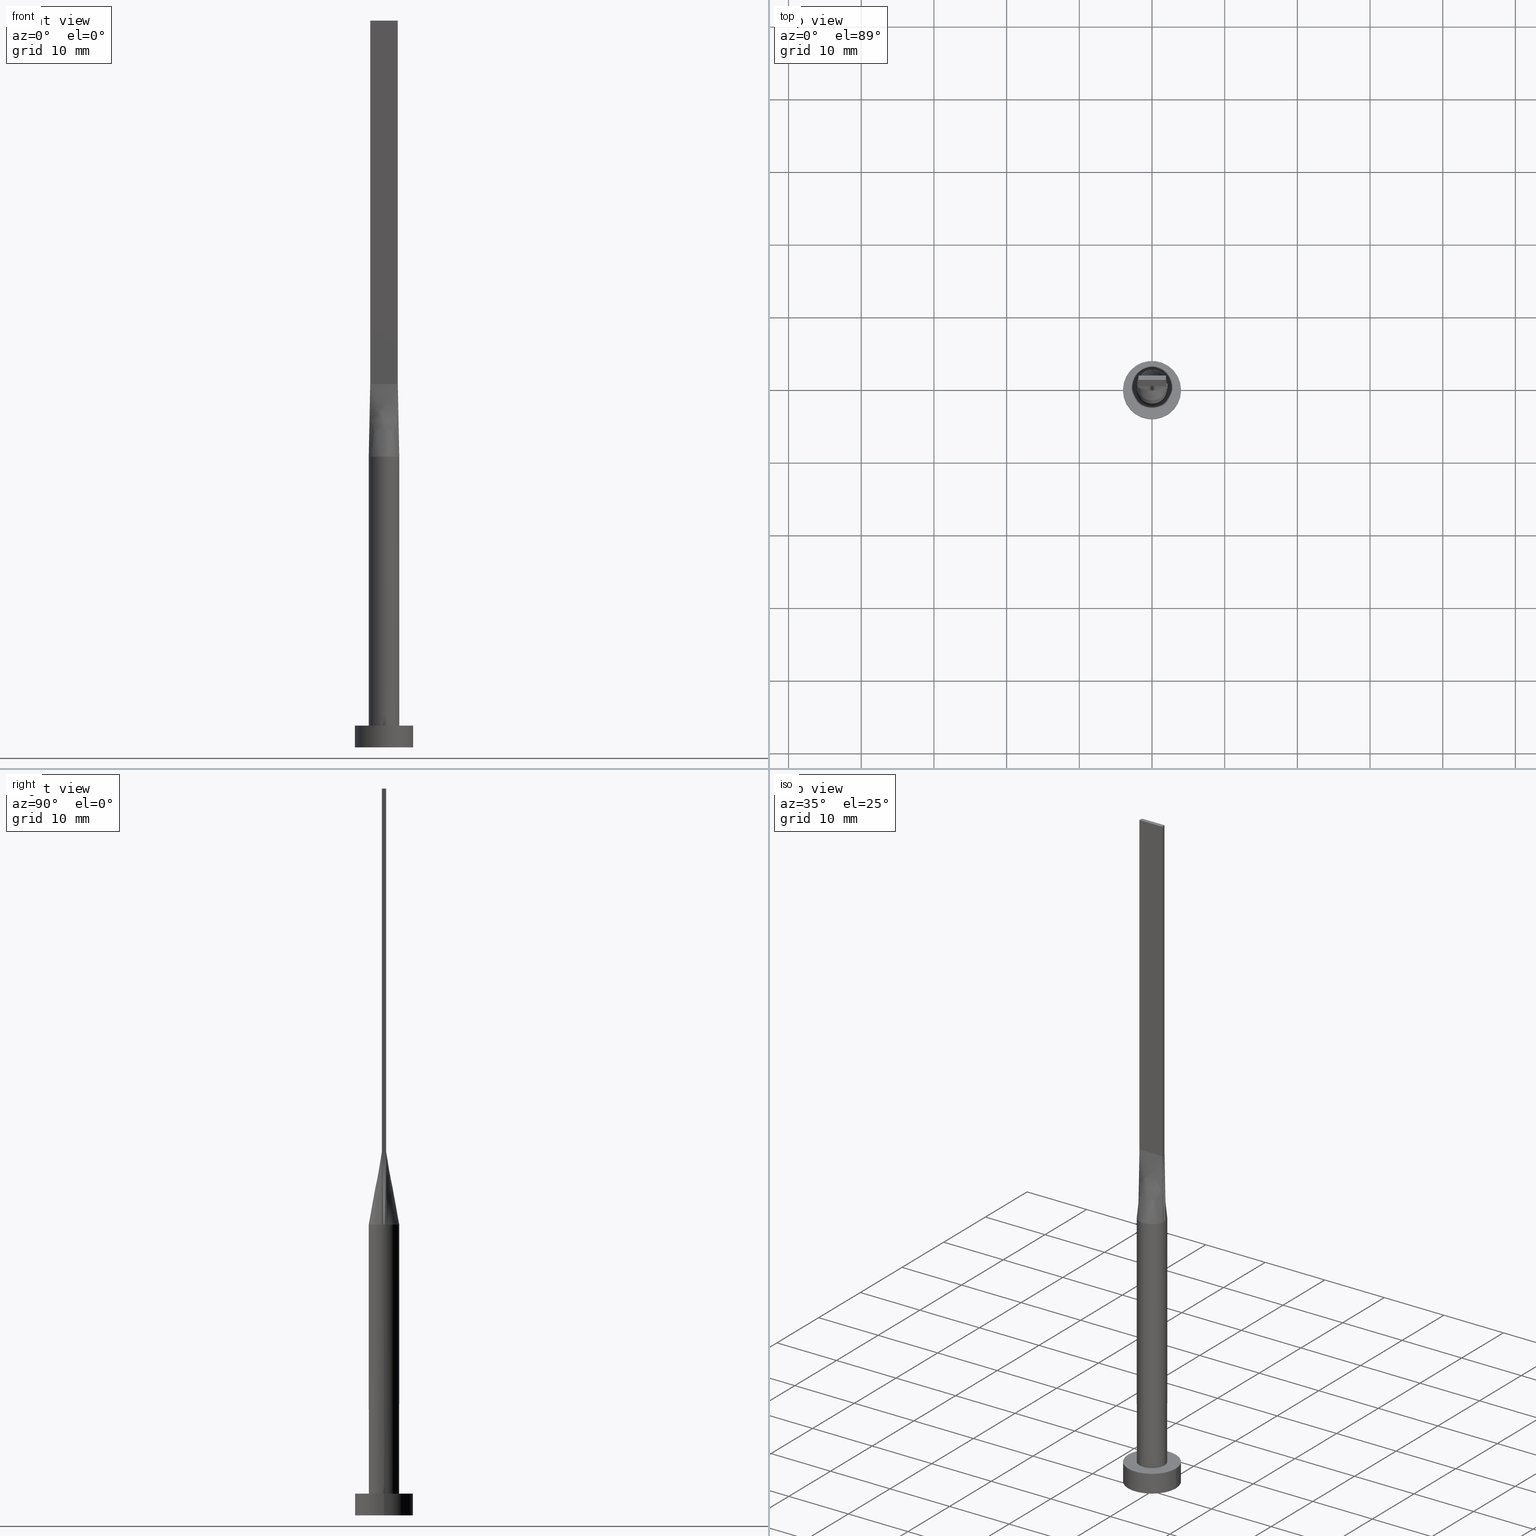
[diagram: canonical four-view strip — front | top / right | iso, engineering-drawing reading convention]
A machine part, canonical four-view strip (front | top / right | iso — engineering-drawing reading convention). The complete STEP part file that produces these views, byte-faithful:
ISO-10303-21;
HEADER;
FILE_DESCRIPTION (( 'STEP AP203' ),
    '1' );
FILE_NAME ('c0ea.STEP',
    '2026-02-12T09:05:10',
    ( '' ),
    ( '' ),
    'SwSTEP 2.0',
    'SolidWorks 2019',
    '' );
FILE_SCHEMA (( 'CONFIG_CONTROL_DESIGN' ));
ENDSEC;

DATA;
#1 = CARTESIAN_POINT ( 'NONE',  ( -1.819451111325472326, 1.069832718648841885, 40.00000000000000711 ) ) ;
#2 = AXIS2_PLACEMENT_3D ( 'NONE', #507, #248, #425 ) ;
#3 = CARTESIAN_POINT ( 'NONE',  ( 1.692271541701912296, 1.268928319070362187, 39.99999999999999289 ) ) ;
#4 = AXIS2_PLACEMENT_3D ( 'NONE', #77, #259, #31 ) ;
#5 = FACE_OUTER_BOUND ( 'NONE', #485, .T. ) ;
#6 = CARTESIAN_POINT ( 'NONE',  ( -1.899999999999999467, 0.2000000000000002609, 50.00000000000000000 ) ) ;
#7 = DIRECTION ( 'NONE',  ( 1.084202172485504434E-15, 1.000000000000000000, 0.000000000000000000 ) ) ;
#8 = ORIENTED_EDGE ( 'NONE', *, *, #22, .T. ) ;
#9 = DIRECTION ( 'NONE',  ( -3.614007241618350250E-16, -1.000000000000000000, 0.000000000000000000 ) ) ;
#10 = CARTESIAN_POINT ( 'NONE',  ( 0.000000000000000000, 0.000000000000000000, 40.00000000000000000 ) ) ;
#11 = LOCAL_TIME ( 10, 5, 10.00000000000000000, #82 ) ;
#12 = VECTOR ( 'NONE', #552, 1000.000000000000000 ) ;
#13 = CARTESIAN_POINT ( 'NONE',  ( 2.091329254218072364, -0.2196835664554854239, 40.00000000000000000 ) ) ;
#14 = CARTESIAN_POINT ( 'NONE',  ( -2.099921383865792635, -5.254633567926592411E-16, 40.00000000000000000 ) ) ;
#15 = PLANE ( 'NONE',  #459 ) ;
#16 = ORIENTED_EDGE ( 'NONE', *, *, #235, .F. ) ;
#17 = CARTESIAN_POINT ( 'NONE',  ( -4.000000000000000000, 0.000000000000000000, 3.000000000000000000 ) ) ;
#18 = CARTESIAN_POINT ( 'NONE',  ( 1.266666666666666385, -0.2999999999999997113, 50.00000000000000000 ) ) ;
#19 = DIRECTION ( 'NONE',  ( 1.000000000000000000, 0.000000000000000000, 0.000000000000000000 ) ) ;
#20 = ORIENTED_EDGE ( 'NONE', *, *, #207, .F. ) ;
#21 = CARTESIAN_POINT ( 'NONE',  ( 2.099842767731585624, 0.1098417832277423373, 40.00000000000000000 ) ) ;
#22 = EDGE_CURVE ( 'NONE', #260, #569, #331, .T. ) ;
#23 = AXIS2_PLACEMENT_3D ( 'NONE', #112, #201, #422 ) ;
#24 =( LENGTH_UNIT ( ) NAMED_UNIT ( * ) SI_UNIT ( .MILLI., .METRE. ) );
#25 = DIRECTION ( 'NONE',  ( 1.000000000000000000, -7.132909029509899409E-17, 0.000000000000000000 ) ) ;
#26 = AXIS2_PLACEMENT_3D ( 'NONE', #137, #350, #72 ) ;
#27 = DIRECTION ( 'NONE',  ( 1.000000000000000000, -7.993605777301127091E-15, 0.000000000000000000 ) ) ;
#28 = CARTESIAN_POINT ( 'NONE',  ( 1.899999999999999689, 0.3000000000000002109, 50.00000000000000000 ) ) ;
#29 = ORIENTED_EDGE ( 'NONE', *, *, #316, .T. ) ;
#30 = APPLICATION_PROTOCOL_DEFINITION ( 'international standard', 'config_control_design', 1994, #341 ) ;
#31 = DIRECTION ( 'NONE',  ( -1.000000000000000000, 0.000000000000000000, 0.000000000000000000 ) ) ;
#32 = DESIGN_CONTEXT ( 'detailed design', #341, 'design' ) ;
#33 = ORIENTED_EDGE ( 'NONE', *, *, #107, .T. ) ;
#34 = CARTESIAN_POINT ( 'NONE',  ( 1.741666666666666474, 0.3000000000000002109, 50.00000000000000000 ) ) ;
#35 = ORIENTED_EDGE ( 'NONE', *, *, #535, .T. ) ;
#36 = LOCAL_TIME ( 10, 5, 10.00000000000000000, #313 ) ;
#37 = ORIENTED_EDGE ( 'NONE', *, *, #283, .T. ) ;
#38 = PERSON_AND_ORGANIZATION_ROLE ( 'classification_officer' ) ;
#39 = CARTESIAN_POINT ( 'NONE',  ( -1.899999999999999689, 0.3000000000000002109, 100.0000000000000000 ) ) ;
#40 = ORIENTED_EDGE ( 'NONE', *, *, #478, .F. ) ;
#41 = DATE_TIME_ROLE ( 'creation_date' ) ;
#42 = DIRECTION ( 'NONE',  ( -0.000000000000000000, -0.000000000000000000, -1.000000000000000000 ) ) ;
#43 = ORIENTED_EDGE ( 'NONE', *, *, #299, .F. ) ;
#44 = EDGE_CURVE ( 'NONE', #86, #315, #490, .T. ) ;
#45 = APPROVAL_DATE_TIME ( #173, #85 ) ;
#46 = VERTEX_POINT ( 'NONE', #58 ) ;
#47 = CIRCLE ( 'NONE', #305, 2.100000000000000089 ) ;
#48 = CALENDAR_DATE ( 2026, 12, 2 ) ;
#49 = ORIENTED_EDGE ( 'NONE', *, *, #280, .F. ) ;
#50 = CARTESIAN_POINT ( 'NONE',  ( -1.996565546919327527, 0.6845950695482648785, 40.00000000000001421 ) ) ;
#51 = CARTESIAN_POINT ( 'NONE',  ( 0.000000000000000000, 0.000000000000000000, 0.000000000000000000 ) ) ;
#52 = PLANE ( 'NONE',  #124 ) ;
#53 = ORGANIZATION ( 'NEUR�EN�', 'NEUR�EN�', '' ) ;
#54 = VECTOR ( 'NONE', #526, 1000.000000000000000 ) ;
#55 = CARTESIAN_POINT ( 'NONE',  ( -1.692271541701912296, 1.268928319070362631, 40.00000000000000711 ) ) ;
#56 = ORIENTED_EDGE ( 'NONE', *, *, #22, .F. ) ;
#57 = CARTESIAN_POINT ( 'NONE',  ( -2.099842767731585624, -0.1098417832277421985, 40.00000000000000000 ) ) ;
#58 = CARTESIAN_POINT ( 'NONE',  ( 2.099921383865792635, 5.174786140116233847E-16, 40.00000000000000000 ) ) ;
#59 = B_SPLINE_SURFACE_WITH_KNOTS ( 'NONE', 3, 1, ( 
 ( #202, #471 ),
 ( #78, #382 ),
 ( #125, #253 ),
 ( #570, #429 ),
 ( #164, #263 ),
 ( #295, #391 ),
 ( #114, #344 ),
 ( #555, #156 ),
 ( #435, #261 ),
 ( #67, #213 ),
 ( #394, #249 ),
 ( #347, #70 ),
 ( #426, #308 ),
 ( #476, #519 ),
 ( #483, #18 ),
 ( #128, #440 ),
 ( #522, #339 ),
 ( #216, #473 ) ),
 .UNSPECIFIED., .F., .F., .F.,
 ( 4, 2, 2, 2, 2, 2, 2, 2, 4 ),
 ( 2, 2 ),
 ( 0.000000000000000000, 0.1249999999999999445, 0.2499999999999999445, 0.3749999999999999445, 0.5000000000000000000, 0.6249999999999998890, 0.7499999999999998890, 0.8749999999999997780, 1.000000000000000000 ),
 ( 0.000000000000000000, 1.000000000000000000 ),
 .UNSPECIFIED. ) ;
#60 = VERTEX_POINT ( 'NONE', #411 ) ;
#61 = CARTESIAN_POINT ( 'NONE',  ( 2.074492141291045755, -0.3275508996892426139, 40.00000000000000000 ) ) ;
#62 = DIRECTION ( 'NONE',  ( 0.000000000000000000, 0.000000000000000000, 1.000000000000000000 ) ) ;
#63 = CARTESIAN_POINT ( 'NONE',  ( 4.000000000000000000, 4.898587196589412829E-16, 3.000000000000000000 ) ) ;
#64 = CARTESIAN_POINT ( 'NONE',  ( 1.899999999999999689, 0.3000000000000002109, 50.00000000000000000 ) ) ;
#65 = EDGE_CURVE ( 'NONE', #357, #250, #238, .T. ) ;
#66 = EDGE_CURVE ( 'NONE', #90, #262, #151, .T. ) ;
#67 = CARTESIAN_POINT ( 'NONE',  ( 0.2990728642939452508, -2.100000000000000533, 40.00000000000000000 ) ) ;
#68 = DIRECTION ( 'NONE',  ( -0.000000000000000000, -0.000000000000000000, -1.000000000000000000 ) ) ;
#69 = CARTESIAN_POINT ( 'NONE',  ( 0.000000000000000000, 0.000000000000000000, 40.00000000000000000 ) ) ;
#70 = CARTESIAN_POINT ( 'NONE',  ( 0.6333333333333340809, -0.2999999999999996003, 50.00000000000000000 ) ) ;
#71 = LINE ( 'NONE', #472, #335 ) ;
#72 = DIRECTION ( 'NONE',  ( 3.614007241618350250E-16, 1.000000000000000000, 0.000000000000000000 ) ) ;
#73 = EDGE_LOOP ( 'NONE', ( #29, #169 ) ) ;
#74 = AXIS2_PLACEMENT_3D ( 'NONE', #556, #371, #145 ) ;
#75 = PERSON_AND_ORGANIZATION ( #567, #53 ) ;
#76 = CARTESIAN_POINT ( 'NONE',  ( 0.3166666666666668184, 0.3000000000000001554, 50.00000000000000000 ) ) ;
#77 = CARTESIAN_POINT ( 'NONE',  ( 0.000000000000000000, 0.000000000000000000, 40.00000000000000000 ) ) ;
#78 = CARTESIAN_POINT ( 'NONE',  ( -2.047342767731585411, -0.4982646475365654637, 39.99999999999999289 ) ) ;
#79 = CARTESIAN_POINT ( 'NONE',  ( 2.047342767731584967, 0.4982646475365660188, 39.99999999999999289 ) ) ;
#80 = EDGE_LOOP ( 'NONE', ( #406, #309, #424, #222, #16 ) ) ;
#81 = VERTEX_POINT ( 'NONE', #241 ) ;
#82 = COORDINATED_UNIVERSAL_TIME_OFFSET ( 1, 0, .AHEAD. ) ;
#83 = AXIS2_PLACEMENT_3D ( 'NONE', #141, #303, #158 ) ;
#84 = LINE ( 'NONE', #178, #314 ) ;
#85 = APPROVAL ( #494, 'NEUR�EN�' ) ;
#86 = VERTEX_POINT ( 'NONE', #14 ) ;
#87 = PERSON_AND_ORGANIZATION ( #567, #53 ) ;
#88 = DIRECTION ( 'NONE',  ( 0.000000000000000000, 0.000000000000000000, 1.000000000000000000 ) ) ;
#89 = DIRECTION ( 'NONE',  ( -1.000000000000000000, -0.000000000000000000, -0.000000000000000000 ) ) ;
#90 = VERTEX_POINT ( 'NONE', #418 ) ;
#91 = PLANE ( 'NONE',  #284 ) ;
#92 = APPROVAL_DATE_TIME ( #317, #390 ) ;
#93 = LOCAL_TIME ( 10, 5, 10.00000000000000000, #360 ) ;
#94 = ORIENTED_EDGE ( 'NONE', *, *, #107, .F. ) ;
#95 = CLOSED_SHELL ( 'NONE', ( #143, #130, #395, #338, #113, #214, #575, #528, #436, #379, #327, #373, #175, #330, #446 ) ) ;
#96 = CARTESIAN_POINT ( 'NONE',  ( 1.583333333333333037, 0.3000000000000002109, 50.00000000000000000 ) ) ;
#97 = CARTESIAN_POINT ( 'NONE',  ( -1.342614810400549308, 1.634425746458370021, 40.00000000000000711 ) ) ;
#98 = EDGE_LOOP ( 'NONE', ( #152, #398 ) ) ;
#99 = CARTESIAN_POINT ( 'NONE',  ( 0.2990728642939458615, 2.100000000000000089, 40.00000000000000000 ) ) ;
#100 = CC_DESIGN_DATE_AND_TIME_ASSIGNMENT ( #488, #41, ( #359 ) ) ;
#101 = CARTESIAN_POINT ( 'NONE',  ( -1.342614810400549308, 1.634425746458370021, 40.00000000000000711 ) ) ;
#102 = CC_DESIGN_APPROVAL ( #390, ( #233 ) ) ;
#103 = AXIS2_PLACEMENT_3D ( 'NONE', #287, #464, #419 ) ;
#104 = PRODUCT ( 'c0ea', 'c0ea', '', ( #510 ) ) ;
#105 = EDGE_CURVE ( 'NONE', #296, #86, #323, .T. ) ;
#106 = CARTESIAN_POINT ( 'NONE',  ( -1.899999999999999911, -0.2999999999999994338, 50.00000000000000000 ) ) ;
#107 = EDGE_CURVE ( 'NONE', #179, #530, #127, .T. ) ;
#108 = CARTESIAN_POINT ( 'NONE',  ( -0.5970064165420507774, 2.033566071616263127, 40.00000000000000000 ) ) ;
#109 = CARTESIAN_POINT ( 'NONE',  ( -1.819451111325472326, 1.069832718648841885, 40.00000000000000711 ) ) ;
#110 = DIRECTION ( 'NONE',  ( 1.000000000000000000, 0.000000000000000000, 0.000000000000000000 ) ) ;
#111 = PLANE ( 'NONE',  #103 ) ;
#112 = CARTESIAN_POINT ( 'NONE',  ( 0.000000000000000000, 0.000000000000000000, 3.000000000000000000 ) ) ;
#113 = ADVANCED_FACE ( 'NONE', ( #529 ), #580, .F. ) ;
#114 = CARTESIAN_POINT ( 'NONE',  ( -1.119115561862284558, -1.799829988698610439, 40.00000000000000711 ) ) ;
#115 = EDGE_LOOP ( 'NONE', ( #212, #561, #581, #149 ) ) ;
#116 = CARTESIAN_POINT ( 'NONE',  ( 2.074302227191044956, -0.3275214042933231595, 40.00000000000000000 ) ) ;
#117 = CARTESIAN_POINT ( 'NONE',  ( -1.987151113595522212, 0.3137607021466613522, 45.00000000000000000 ) ) ;
#118 = ORIENTED_EDGE ( 'NONE', *, *, #66, .T. ) ;
#119 = CARTESIAN_POINT ( 'NONE',  ( 2.091329254218072364, 0.2196835664554849243, 40.00000000000000000 ) ) ;
#120 = EDGE_LOOP ( 'NONE', ( #123, #197, #306, #513 ) ) ;
#121 = LINE ( 'NONE', #165, #409 ) ;
#122 = DIRECTION ( 'NONE',  ( -0.000000000000000000, -0.000000000000000000, -1.000000000000000000 ) ) ;
#123 = ORIENTED_EDGE ( 'NONE', *, *, #481, .F. ) ;
#124 = AXIS2_PLACEMENT_3D ( 'NONE', #229, #234, #240 ) ;
#125 = CARTESIAN_POINT ( 'NONE',  ( -1.996565546919327971, -0.6845950695482642123, 40.00000000000000711 ) ) ;
#126 = EDGE_CURVE ( 'NONE', #569, #357, #319, .T. ) ;
#127 = CIRCLE ( 'NONE', #546, 4.000000000000000000 ) ;
#128 = CARTESIAN_POINT ( 'NONE',  ( 1.996565546919328415, -0.6845950695482654336, 40.00000000000001421 ) ) ;
#129 = PERSON_AND_ORGANIZATION ( #567, #53 ) ;
#130 = ADVANCED_FACE ( 'NONE', ( #231 ), #408, .T. ) ;
#131 = APPROVAL_STATUS ( 'not_yet_approved' ) ;
#132 = AXIS2_PLACEMENT_3D ( 'NONE', #400, #88, #505 ) ;
#133 = EDGE_LOOP ( 'NONE', ( #8, #389, #279, #506 ) ) ;
#134 = ORIENTED_EDGE ( 'NONE', *, *, #415, .F. ) ;
#135 = PERSON_AND_ORGANIZATION ( #567, #53 ) ;
#136 = ORIENTED_EDGE ( 'NONE', *, *, #316, .F. ) ;
#137 = CARTESIAN_POINT ( 'NONE',  ( -1.899999999999999689, 0.3000000000000002109, 100.0000000000000000 ) ) ;
#138 = CYLINDRICAL_SURFACE ( 'NONE', #365, 4.000000000000000000 ) ;
#139 = ORIENTED_EDGE ( 'NONE', *, *, #501, .T. ) ;
#140 = CARTESIAN_POINT ( 'NONE',  ( -2.100000000000000089, 0.000000000000000000, 3.000000000000000000 ) ) ;
#141 = CARTESIAN_POINT ( 'NONE',  ( 0.000000000000000000, 0.000000000000000000, 3.000000000000000000 ) ) ;
#142 = CARTESIAN_POINT ( 'NONE',  ( -2.074302227191044956, 0.3275214042933224934, 40.00000000000000000 ) ) ;
#143 = ADVANCED_FACE ( 'NONE', ( #217 ), #252, .T. ) ;
#144 = CARTESIAN_POINT ( 'NONE',  ( -1.108333333333333171, 0.3000000000000002109, 50.00000000000000000 ) ) ;
#145 = DIRECTION ( 'NONE',  ( 1.000000000000000000, 0.000000000000000000, 0.000000000000000000 ) ) ;
#146 = AXIS2_PLACEMENT_3D ( 'NONE', #51, #538, #401 ) ;
#147 = CARTESIAN_POINT ( 'NONE',  ( -0.1583333333333330761, 0.3000000000000001554, 50.00000000000000000 ) ) ;
#148 = VECTOR ( 'NONE', #326, 1000.000000000000000 ) ;
#149 = ORIENTED_EDGE ( 'NONE', *, *, #188, .F. ) ;
#150 = CARTESIAN_POINT ( 'NONE',  ( -2.074302227191044956, 0.3275214042933229375, 40.00000000000000000 ) ) ;
#151 = LINE ( 'NONE', #245, #512 ) ;
#152 = ORIENTED_EDGE ( 'NONE', *, *, #551, .F. ) ;
#153 = CARTESIAN_POINT ( 'NONE',  ( 1.899999999999999467, 0.2000000000000000666, 50.00000000000000000 ) ) ;
#154 = CARTESIAN_POINT ( 'NONE',  ( 1.899999999999999023, -0.2999999999999997669, 100.0000000000000000 ) ) ;
#155 = CIRCLE ( 'NONE', #2, 2.100000000000000089 ) ;
#156 = CARTESIAN_POINT ( 'NONE',  ( -0.3166666666666652086, -0.2999999999999996003, 50.00000000000000000 ) ) ;
#157 = CARTESIAN_POINT ( 'NONE',  ( 1.899999999999999467, 0.1000000000000000194, 50.00000000000000000 ) ) ;
#158 = DIRECTION ( 'NONE',  ( -1.000000000000000000, 0.000000000000000000, 0.000000000000000000 ) ) ;
#159 = ORIENTED_EDGE ( 'NONE', *, *, #280, .T. ) ;
#160 = DIRECTION ( 'NONE',  ( 1.000000000000000000, 0.000000000000000000, 0.000000000000000000 ) ) ;
#161 = CARTESIAN_POINT ( 'NONE',  ( -1.899999999999999911, -0.2999999999999994893, 50.00000000000000000 ) ) ;
#162 = CARTESIAN_POINT ( 'NONE',  ( -4.000000000000000000, 0.000000000000000000, 3.000000000000000000 ) ) ;
#163 = DIRECTION ( 'NONE',  ( 7.132909029509899409E-17, 1.000000000000000000, -0.000000000000000000 ) ) ;
#164 = CARTESIAN_POINT ( 'NONE',  ( -1.692271541701912296, -1.268928319070361965, 40.00000000000000000 ) ) ;
#165 = CARTESIAN_POINT ( 'NONE',  ( 1.987151113595522212, -0.3137607021466614632, 45.00000000000000000 ) ) ;
#166 = CARTESIAN_POINT ( 'NONE',  ( 1.119115561862284558, 1.799829988698611105, 40.00000000000000000 ) ) ;
#167 = CARTESIAN_POINT ( 'NONE',  ( 0.000000000000000000, 0.000000000000000000, 40.00000000000000000 ) ) ;
#168 = CARTESIAN_POINT ( 'NONE',  ( 0.000000000000000000, 0.000000000000000000, 3.000000000000000000 ) ) ;
#169 = ORIENTED_EDGE ( 'NONE', *, *, #481, .T. ) ;
#170 = APPROVAL_PERSON_ORGANIZATION ( #129, #186, #272 ) ;
#171 =( NAMED_UNIT ( * ) PLANE_ANGLE_UNIT ( ) SI_UNIT ( $, .RADIAN. ) );
#172 = DIRECTION ( 'NONE',  ( 0.000000000000000000, 0.000000000000000000, 1.000000000000000000 ) ) ;
#173 = DATE_AND_TIME ( #48, #497 ) ;
#174 = DIRECTION ( 'NONE',  ( -0.01742750958084847077, 0.002751712039081371727, 0.9998443428807622935 ) ) ;
#175 = ADVANCED_FACE ( 'NONE', ( #386 ), #560, .F. ) ;
#176 = EDGE_LOOP ( 'NONE', ( #462, #353, #393, #56, #362 ) ) ;
#177 = COORDINATED_UNIVERSAL_TIME_OFFSET ( 1, 0, .AHEAD. ) ;
#178 = CARTESIAN_POINT ( 'NONE',  ( 2.100000000000000089, 2.571758278209441957E-16, 40.00000000000000000 ) ) ;
#179 = VERTEX_POINT ( 'NONE', #342 ) ;
#180 = SECURITY_CLASSIFICATION_LEVEL ( 'unclassified' ) ;
#181 = EDGE_LOOP ( 'NONE', ( #343, #136, #364, #33 ) ) ;
#182 = CARTESIAN_POINT ( 'NONE',  ( 0.000000000000000000, 0.000000000000000000, 3.000000000000000000 ) ) ;
#183 = ORIENTED_EDGE ( 'NONE', *, *, #574, .F. ) ;
#184 = CIRCLE ( 'NONE', #358, 4.000000000000000000 ) ;
#185 = CARTESIAN_POINT ( 'NONE',  ( -1.266666666666666385, 0.3000000000000002109, 50.00000000000000000 ) ) ;
#186 = APPROVAL ( #527, 'NEUR�EN�' ) ;
#187 = LINE ( 'NONE', #417, #266 ) ;
#188 = EDGE_CURVE ( 'NONE', #265, #569, #564, .T. ) ;
#189 = CC_DESIGN_PERSON_AND_ORGANIZATION_ASSIGNMENT ( #75, #258, ( #104 ) ) ;
#190 = CARTESIAN_POINT ( 'NONE',  ( 1.108333333333333171, 0.3000000000000001554, 50.00000000000000000 ) ) ;
#191 = B_SPLINE_SURFACE_WITH_KNOTS ( 'NONE', 3, 1, ( 
 ( #116, #251 ),
 ( #13, #388 ),
 ( #345, #517 ),
 ( #21, #157 ),
 ( #119, #153 ),
 ( #332, #381 ) ),
 .UNSPECIFIED., .F., .F., .F.,
 ( 4, 2, 4 ),
 ( 2, 2 ),
 ( 0.000000000000000000, 0.5000000000000000000, 1.000000000000000000 ),
 ( 0.000000000000000000, 1.000000000000000000 ),
 .UNSPECIFIED. ) ;
#192 = CARTESIAN_POINT ( 'NONE',  ( -0.5970064165420507774, 2.033566071616263127, 40.00000000000000000 ) ) ;
#193 = ORIENTED_EDGE ( 'NONE', *, *, #461, .T. ) ;
#194 = CARTESIAN_POINT ( 'NONE',  ( -1.692271541701912296, 1.268928319070362631, 40.00000000000000711 ) ) ;
#195 = DIRECTION ( 'NONE',  ( 0.000000000000000000, 0.000000000000000000, 1.000000000000000000 ) ) ;
#196 = DIRECTION ( 'NONE',  ( -1.084202172485504434E-15, -1.000000000000000000, 0.000000000000000000 ) ) ;
#197 = ORIENTED_EDGE ( 'NONE', *, *, #336, .T. ) ;
#198 = CARTESIAN_POINT ( 'NONE',  ( 1.899999999999999689, 0.3000000000000002109, 100.0000000000000000 ) ) ;
#199 = DIRECTION ( 'NONE',  ( -0.000000000000000000, -0.000000000000000000, -1.000000000000000000 ) ) ;
#200 = EDGE_LOOP ( 'NONE', ( #159, #183, #387, #448 ) ) ;
#201 = DIRECTION ( 'NONE',  ( 0.000000000000000000, 0.000000000000000000, 1.000000000000000000 ) ) ;
#202 = CARTESIAN_POINT ( 'NONE',  ( -2.074302227191044956, -0.3275214042933223824, 40.00000000000000000 ) ) ;
#203 = LINE ( 'NONE', #470, #468 ) ;
#204 = CC_DESIGN_SECURITY_CLASSIFICATION ( #274, ( #233 ) ) ;
#205 = EDGE_LOOP ( 'NONE', ( #469, #20, #247, #257, #442, #403 ) ) ;
#206 = DIRECTION ( 'NONE',  ( -1.000000000000000000, 0.000000000000000000, 0.000000000000000000 ) ) ;
#207 = EDGE_CURVE ( 'NONE', #566, #46, #47, .T. ) ;
#208 = CARTESIAN_POINT ( 'NONE',  ( -0.2990728642939458615, 2.100000000000000089, 40.00000000000000000 ) ) ;
#209 = EDGE_CURVE ( 'NONE', #60, #416, #443, .T. ) ;
#210 = CARTESIAN_POINT ( 'NONE',  ( 0.000000000000000000, 0.000000000000000000, 3.000000000000000000 ) ) ;
#211 = DIRECTION ( 'NONE',  ( 0.000000000000000000, 0.000000000000000000, 1.000000000000000000 ) ) ;
#212 = ORIENTED_EDGE ( 'NONE', *, *, #415, .T. ) ;
#213 = CARTESIAN_POINT ( 'NONE',  ( 0.1583333333333347415, -0.2999999999999996003, 50.00000000000000000 ) ) ;
#214 = ADVANCED_FACE ( 'NONE', ( #346 ), #438, .T. ) ;
#215 = CARTESIAN_POINT ( 'NONE',  ( 0.000000000000000000, 0.000000000000000000, 40.00000000000000000 ) ) ;
#216 = CARTESIAN_POINT ( 'NONE',  ( 2.074302227191044956, -0.3275214042933231595, 40.00000000000000000 ) ) ;
#217 = FACE_OUTER_BOUND ( 'NONE', #539, .T. ) ;
#218 = CARTESIAN_POINT ( 'NONE',  ( 0.000000000000000000, 0.000000000000000000, 0.000000000000000000 ) ) ;
#219 = ORIENTED_EDGE ( 'NONE', *, *, #126, .T. ) ;
#220 = CALENDAR_DATE ( 2026, 12, 2 ) ;
#221 = CARTESIAN_POINT ( 'NONE',  ( 2.074471112824316510, 0.3275477247839024275, 40.00000000000000000 ) ) ;
#222 = ORIENTED_EDGE ( 'NONE', *, *, #65, .F. ) ;
#223 = DATE_TIME_ROLE ( 'classification_date' ) ;
#224 = VECTOR ( 'NONE', #515, 1000.000000000000114 ) ;
#225 = ADVANCED_BREP_SHAPE_REPRESENTATION ( 'c0ea', ( #433, #520 ), #312 ) ;
#226 = EDGE_LOOP ( 'NONE', ( #219, #439, #447, #139 ) ) ;
#227 = LINE ( 'NONE', #356, #54 ) ;
#228 = EDGE_CURVE ( 'NONE', #315, #566, #276, .T. ) ;
#229 = CARTESIAN_POINT ( 'NONE',  ( 0.000000000000000000, 0.000000000000000000, 100.0000000000000000 ) ) ;
#230 = CARTESIAN_POINT ( 'NONE',  ( -1.583333333333333037, 0.3000000000000002109, 50.00000000000000000 ) ) ;
#231 = FACE_OUTER_BOUND ( 'NONE', #120, .T. ) ;
#232 = B_SPLINE_CURVE_WITH_KNOTS ( 'NONE', 3,
 ( #237, #375, #460, #547, #463, #454, #370, #290, #99, #410, #192, #322, #101, #55, #109, #407, #367, #540 ),
 .UNSPECIFIED., .F., .F.,
 ( 4, 2, 2, 2, 2, 2, 2, 2, 4 ),
 ( 0.000000000000000000, 0.1249999999999999722, 0.2500000000000000000, 0.3750000000000000000, 0.5000000000000000000, 0.6250000000000000000, 0.7500000000000000000, 0.8750000000000000000, 1.000000000000000000 ),
 .UNSPECIFIED. ) ;
#233 = PRODUCT_DEFINITION_FORMATION_WITH_SPECIFIED_SOURCE ( 'LIBOVOLN�', '', #104, .NOT_KNOWN. ) ;
#234 = DIRECTION ( 'NONE',  ( 0.000000000000000000, 0.000000000000000000, 1.000000000000000000 ) ) ;
#235 = EDGE_CURVE ( 'NONE', #296, #357, #264, .T. ) ;
#236 = AXIS2_PLACEMENT_3D ( 'NONE', #524, #163, #349 ) ;
#237 = CARTESIAN_POINT ( 'NONE',  ( 2.074471112824316510, 0.3275477247839024275, 40.00000000000000000 ) ) ;
#238 = LINE ( 'NONE', #414, #148 ) ;
#239 = ORIENTED_EDGE ( 'NONE', *, *, #209, .T. ) ;
#240 = DIRECTION ( 'NONE',  ( 1.000000000000000000, 0.000000000000000000, -0.000000000000000000 ) ) ;
#241 = CARTESIAN_POINT ( 'NONE',  ( -1.899999999999999911, -0.2999999999999994893, 100.0000000000000000 ) ) ;
#242 = CC_DESIGN_DATE_AND_TIME_ASSIGNMENT ( #397, #223, ( #274 ) ) ;
#243 = ORIENTED_EDGE ( 'NONE', *, *, #65, .T. ) ;
#244 = CARTESIAN_POINT ( 'NONE',  ( 0.000000000000000000, 0.000000000000000000, 3.000000000000000000 ) ) ;
#245 = CARTESIAN_POINT ( 'NONE',  ( 1.899999999999999023, -0.2999999999999997669, 100.0000000000000000 ) ) ;
#246 = CC_DESIGN_APPROVAL ( #186, ( #274 ) ) ;
#247 = ORIENTED_EDGE ( 'NONE', *, *, #228, .F. ) ;
#248 = DIRECTION ( 'NONE',  ( 0.000000000000000000, 0.000000000000000000, 1.000000000000000000 ) ) ;
#249 = CARTESIAN_POINT ( 'NONE',  ( 0.3166666666666678176, -0.2999999999999996003, 50.00000000000000000 ) ) ;
#250 = VERTEX_POINT ( 'NONE', #161 ) ;
#251 = CARTESIAN_POINT ( 'NONE',  ( 1.899999999999999911, -0.2999999999999997669, 50.00000000000000000 ) ) ;
#252 = CYLINDRICAL_SURFACE ( 'NONE', #521, 2.100000000000000089 ) ;
#253 = CARTESIAN_POINT ( 'NONE',  ( -1.583333333333333037, -0.2999999999999994893, 50.00000000000000000 ) ) ;
#254 = LINE ( 'NONE', #198, #554 ) ;
#255 = EDGE_CURVE ( 'NONE', #566, #260, #121, .T. ) ;
#256 = APPROVAL_PERSON_ORGANIZATION ( #135, #390, #444 ) ;
#257 = ORIENTED_EDGE ( 'NONE', *, *, #44, .F. ) ;
#258 = PERSON_AND_ORGANIZATION_ROLE ( 'design_owner' ) ;
#259 = DIRECTION ( 'NONE',  ( -0.000000000000000000, -0.000000000000000000, -1.000000000000000000 ) ) ;
#260 = VERTEX_POINT ( 'NONE', #275 ) ;
#261 = CARTESIAN_POINT ( 'NONE',  ( -0.1583333333333317716, -0.2999999999999996003, 50.00000000000000711 ) ) ;
#262 = VERTEX_POINT ( 'NONE', #268 ) ;
#263 = CARTESIAN_POINT ( 'NONE',  ( -1.108333333333332504, -0.2999999999999994893, 50.00000000000000000 ) ) ;
#264 = LINE ( 'NONE', #117, #361 ) ;
#265 = VERTEX_POINT ( 'NONE', #221 ) ;
#266 = VECTOR ( 'NONE', #9, 1000.000000000000000 ) ;
#267 = CALENDAR_DATE ( 2026, 12, 2 ) ;
#268 = CARTESIAN_POINT ( 'NONE',  ( 1.899999999999999689, 0.3000000000000002109, 100.0000000000000000 ) ) ;
#269 = AXIS2_PLACEMENT_3D ( 'NONE', #210, #172, #480 ) ;
#270 = CARTESIAN_POINT ( 'NONE',  ( -2.074486960997361962, -0.3275502116714910095, 40.00000000000000000 ) ) ;
#271 = ORIENTED_EDGE ( 'NONE', *, *, #255, .T. ) ;
#272 = APPROVAL_ROLE ( '' ) ;
#273 = PERSON_AND_ORGANIZATION ( #567, #53 ) ;
#274 = SECURITY_CLASSIFICATION ( '', '', #180 ) ;
#275 = CARTESIAN_POINT ( 'NONE',  ( 1.899999999999999023, -0.2999999999999997669, 50.00000000000000000 ) ) ;
#276 = CIRCLE ( 'NONE', #337, 2.100000000000000089 ) ;
#277 = CARTESIAN_POINT ( 'NONE',  ( 1.819451111325471215, 1.069832718648841885, 39.99999999999998579 ) ) ;
#278 = DIRECTION ( 'NONE',  ( -1.000000000000000000, 0.000000000000000000, 0.000000000000000000 ) ) ;
#279 = ORIENTED_EDGE ( 'NONE', *, *, #66, .F. ) ;
#280 = EDGE_CURVE ( 'NONE', #250, #260, #572, .T. ) ;
#281 = CARTESIAN_POINT ( 'NONE',  ( -1.899999999999999689, -0.09999999999999953371, 50.00000000000000000 ) ) ;
#282 = CARTESIAN_POINT ( 'NONE',  ( -0.6333333333333329707, 0.3000000000000001554, 50.00000000000000000 ) ) ;
#283 = EDGE_CURVE ( 'NONE', #46, #60, #84, .T. ) ;
#284 = AXIS2_PLACEMENT_3D ( 'NONE', #168, #211, #304 ) ;
#285 = CARTESIAN_POINT ( 'NONE',  ( -0.3166666666666663743, 0.3000000000000001554, 50.00000000000000000 ) ) ;
#286 = CARTESIAN_POINT ( 'NONE',  ( 4.000000000000000000, 4.898587196589412829E-16, 3.000000000000000000 ) ) ;
#287 = CARTESIAN_POINT ( 'NONE',  ( 1.899999999999999689, 0.3000000000000002109, 100.0000000000000000 ) ) ;
#288 = CC_DESIGN_PERSON_AND_ORGANIZATION_ASSIGNMENT ( #573, #311, ( #359 ) ) ;
#289 = EDGE_LOOP ( 'NONE', ( #94, #320 ) ) ;
#290 = CARTESIAN_POINT ( 'NONE',  ( 0.5970064165420508884, 2.033566071616262683, 40.00000000000000000 ) ) ;
#291 = FACE_OUTER_BOUND ( 'NONE', #226, .T. ) ;
#292 = CARTESIAN_POINT ( 'NONE',  ( 1.899999999999999689, 0.3000000000000002109, 50.00000000000000000 ) ) ;
#293 = CARTESIAN_POINT ( 'NONE',  ( -1.899999999999999911, -0.2999999999999994893, 100.0000000000000000 ) ) ;
#294 = CIRCLE ( 'NONE', #477, 4.000000000000000000 ) ;
#295 = CARTESIAN_POINT ( 'NONE',  ( -1.342614810400548864, -1.634425746458369355, 40.00000000000000711 ) ) ;
#296 = VERTEX_POINT ( 'NONE', #445 ) ;
#297 = DIRECTION ( 'NONE',  ( 1.000000000000000000, 0.000000000000000000, 0.000000000000000000 ) ) ;
#298 = APPLICATION_CONTEXT ( 'configuration controlled 3d designs of mechanical parts and assemblies' ) ;
#299 = EDGE_CURVE ( 'NONE', #86, #416, #227, .T. ) ;
#300 = DIRECTION ( 'NONE',  ( 0.01742750958084840485, -0.002751712039081263307, 0.9998443428807622935 ) ) ;
#301 = CARTESIAN_POINT ( 'NONE',  ( 4.000000000000000000, 4.898587196589412829E-16, 0.000000000000000000 ) ) ;
#302 = CARTESIAN_POINT ( 'NONE',  ( 0.2990728642939458615, 2.100000000000000089, 40.00000000000000000 ) ) ;
#303 = DIRECTION ( 'NONE',  ( -0.000000000000000000, -0.000000000000000000, -1.000000000000000000 ) ) ;
#304 = DIRECTION ( 'NONE',  ( 1.000000000000000000, 0.000000000000000000, -0.000000000000000000 ) ) ;
#305 = AXIS2_PLACEMENT_3D ( 'NONE', #167, #432, #27 ) ;
#306 = ORIENTED_EDGE ( 'NONE', *, *, #486, .T. ) ;
#307 = VECTOR ( 'NONE', #89, 1000.000000000000000 ) ;
#308 = CARTESIAN_POINT ( 'NONE',  ( 0.7916666666666672958, -0.2999999999999996003, 50.00000000000000000 ) ) ;
#309 = ORIENTED_EDGE ( 'NONE', *, *, #44, .T. ) ;
#310 = VERTEX_POINT ( 'NONE', #39 ) ;
#311 = PERSON_AND_ORGANIZATION_ROLE ( 'creator' ) ;
#312 =( GEOMETRIC_REPRESENTATION_CONTEXT ( 3 ) GLOBAL_UNCERTAINTY_ASSIGNED_CONTEXT ( ( #482 ) ) GLOBAL_UNIT_ASSIGNED_CONTEXT ( ( #24, #171, #352 ) ) REPRESENTATION_CONTEXT ( 'NONE', 'WORKASPACE' ) );
#313 = COORDINATED_UNIVERSAL_TIME_OFFSET ( 1, 0, .AHEAD. ) ;
#314 = VECTOR ( 'NONE', #42, 1000.000000000000000 ) ;
#315 = VERTEX_POINT ( 'NONE', #270 ) ;
#316 = EDGE_CURVE ( 'NONE', #493, #455, #385, .T. ) ;
#317 = DATE_AND_TIME ( #451, #93 ) ;
#318 = CARTESIAN_POINT ( 'NONE',  ( -1.119115561862284558, 1.799829988698611327, 39.99999999999998579 ) ) ;
#319 = LINE ( 'NONE', #495, #307 ) ;
#320 = ORIENTED_EDGE ( 'NONE', *, *, #486, .F. ) ;
#321 = CARTESIAN_POINT ( 'NONE',  ( -2.047342767731585855, 0.4982646475365663519, 40.00000000000000000 ) ) ;
#322 = CARTESIAN_POINT ( 'NONE',  ( -1.119115561862284558, 1.799829988698611327, 39.99999999999998579 ) ) ;
#323 = CIRCLE ( 'NONE', #366, 2.100000000000000089 ) ;
#324 = VECTOR ( 'NONE', #500, 1000.000000000000114 ) ;
#325 = CARTESIAN_POINT ( 'NONE',  ( -1.899999999999999467, 0.1000000000000003386, 50.00000000000000000 ) ) ;
#326 = DIRECTION ( 'NONE',  ( -3.614007241618350250E-16, -1.000000000000000000, 0.000000000000000000 ) ) ;
#327 = ADVANCED_FACE ( 'NONE', ( #291 ), #111, .F. ) ;
#328 = CARTESIAN_POINT ( 'NONE',  ( -2.099842767731585624, 0.1098417832277427397, 40.00000000000000000 ) ) ;
#329 = LINE ( 'NONE', #63, #532 ) ;
#330 = ADVANCED_FACE ( 'NONE', ( #548 ), #15, .F. ) ;
#331 = LINE ( 'NONE', #292, #12 ) ;
#332 = CARTESIAN_POINT ( 'NONE',  ( 2.074302227191044956, 0.3275214042933226599, 40.00000000000000000 ) ) ;
#333 = APPLICATION_PROTOCOL_DEFINITION ( 'international standard', 'config_control_design', 1994, #298 ) ;
#334 = DIRECTION ( 'NONE',  ( 1.000000000000000000, 0.000000000000000000, 0.000000000000000000 ) ) ;
#335 = VECTOR ( 'NONE', #206, 1000.000000000000000 ) ;
#336 = EDGE_CURVE ( 'NONE', #455, #530, #329, .T. ) ;
#337 = AXIS2_PLACEMENT_3D ( 'NONE', #215, #392, #19 ) ;
#338 = ADVANCED_FACE ( 'NONE', ( #378, #372 ), #91, .T. ) ;
#339 = CARTESIAN_POINT ( 'NONE',  ( 1.741666666666665586, -0.2999999999999997113, 50.00000000000000000 ) ) ;
#340 = CARTESIAN_POINT ( 'NONE',  ( 0.000000000000000000, 0.000000000000000000, 0.000000000000000000 ) ) ;
#341 = APPLICATION_CONTEXT ( 'configuration controlled 3d designs of mechanical parts and assemblies' ) ;
#342 = CARTESIAN_POINT ( 'NONE',  ( -4.000000000000000000, 0.000000000000000000, 0.000000000000000000 ) ) ;
#343 = ORIENTED_EDGE ( 'NONE', *, *, #336, .F. ) ;
#344 = CARTESIAN_POINT ( 'NONE',  ( -0.6333333333333320825, -0.2999999999999996003, 50.00000000000000000 ) ) ;
#345 = CARTESIAN_POINT ( 'NONE',  ( 2.099842767731585624, -0.1098417832277428230, 40.00000000000000000 ) ) ;
#346 = FACE_OUTER_BOUND ( 'NONE', #205, .T. ) ;
#347 = CARTESIAN_POINT ( 'NONE',  ( 1.119115561862284114, -1.799829988698610883, 39.99999999999998579 ) ) ;
#348 = VECTOR ( 'NONE', #68, 1000.000000000000000 ) ;
#349 = DIRECTION ( 'NONE',  ( -1.000000000000000000, 7.132909029509899409E-17, 0.000000000000000000 ) ) ;
#350 = DIRECTION ( 'NONE',  ( 1.000000000000000000, -3.614007241618350250E-16, 0.000000000000000000 ) ) ;
#351 = ORIENTED_EDGE ( 'NONE', *, *, #105, .F. ) ;
#352 =( NAMED_UNIT ( * ) SI_UNIT ( $, .STERADIAN. ) SOLID_ANGLE_UNIT ( ) );
#353 = ORIENTED_EDGE ( 'NONE', *, *, #478, .T. ) ;
#354 = APPROVAL_DATE_TIME ( #576, #186 ) ;
#355 = PERSON_AND_ORGANIZATION ( #567, #53 ) ;
#356 = CARTESIAN_POINT ( 'NONE',  ( -2.100000000000000089, 0.000000000000000000, 40.00000000000000000 ) ) ;
#357 = VERTEX_POINT ( 'NONE', #484 ) ;
#358 = AXIS2_PLACEMENT_3D ( 'NONE', #340, #508, #297 ) ;
#359 = PRODUCT_DEFINITION ( 'NEZN�M�', '', #233, #32 ) ;
#360 = COORDINATED_UNIVERSAL_TIME_OFFSET ( 1, 0, .AHEAD. ) ;
#361 = VECTOR ( 'NONE', #300, 1000.000000000000114 ) ;
#362 = ORIENTED_EDGE ( 'NONE', *, *, #255, .F. ) ;
#363 = CARTESIAN_POINT ( 'NONE',  ( -1.987151113595522656, -0.3137607021466609636, 45.00000000000000000 ) ) ;
#364 = ORIENTED_EDGE ( 'NONE', *, *, #509, .T. ) ;
#365 = AXIS2_PLACEMENT_3D ( 'NONE', #182, #498, #278 ) ;
#366 = AXIS2_PLACEMENT_3D ( 'NONE', #10, #195, #110 ) ;
#367 = CARTESIAN_POINT ( 'NONE',  ( -2.047342767731585855, 0.4982646475365663519, 40.00000000000000000 ) ) ;
#368 = LINE ( 'NONE', #363, #324 ) ;
#369 = B_SPLINE_SURFACE_WITH_KNOTS ( 'NONE', 3, 1, ( 
 ( #150, #542 ),
 ( #413, #6 ),
 ( #328, #325 ),
 ( #57, #281 ),
 ( #465, #457 ),
 ( #503, #106 ) ),
 .UNSPECIFIED., .F., .F., .F.,
 ( 4, 2, 4 ),
 ( 2, 2 ),
 ( 0.000000000000000000, 0.5000000000000000000, 1.000000000000000000 ),
 ( 0.000000000000000000, 1.000000000000000000 ),
 .UNSPECIFIED. ) ;
#370 = CARTESIAN_POINT ( 'NONE',  ( 1.119115561862284558, 1.799829988698611105, 40.00000000000000000 ) ) ;
#371 = DIRECTION ( 'NONE',  ( 0.000000000000000000, 0.000000000000000000, 1.000000000000000000 ) ) ;
#372 = FACE_OUTER_BOUND ( 'NONE', #73, .T. ) ;
#373 = ADVANCED_FACE ( 'NONE', ( #518 ), #578, .F. ) ;
#374 = VECTOR ( 'NONE', #550, 1000.000000000000000 ) ;
#375 = CARTESIAN_POINT ( 'NONE',  ( 2.047342767731584967, 0.4982646475365660188, 39.99999999999999289 ) ) ;
#376 = DIRECTION ( 'NONE',  ( -1.000000000000000000, 1.084202172485504434E-15, 0.000000000000000000 ) ) ;
#377 = DIRECTION ( 'NONE',  ( -0.000000000000000000, -0.000000000000000000, -1.000000000000000000 ) ) ;
#378 = FACE_BOUND ( 'NONE', #98, .T. ) ;
#379 = ADVANCED_FACE ( 'NONE', ( #434 ), #543, .T. ) ;
#380 = ORIENTED_EDGE ( 'NONE', *, *, #559, .F. ) ;
#381 = CARTESIAN_POINT ( 'NONE',  ( 1.899999999999999689, 0.3000000000000002109, 50.00000000000000000 ) ) ;
#382 = CARTESIAN_POINT ( 'NONE',  ( -1.741666666666666474, -0.2999999999999994893, 50.00000000000000000 ) ) ;
#383 = ORIENTED_EDGE ( 'NONE', *, *, #399, .T. ) ;
#384 = DIRECTION ( 'NONE',  ( 0.000000000000000000, 0.000000000000000000, 1.000000000000000000 ) ) ;
#385 = CIRCLE ( 'NONE', #132, 4.000000000000000000 ) ;
#386 = FACE_OUTER_BOUND ( 'NONE', #200, .T. ) ;
#387 = ORIENTED_EDGE ( 'NONE', *, *, #535, .F. ) ;
#388 = CARTESIAN_POINT ( 'NONE',  ( 1.899999999999999689, -0.1999999999999998723, 50.00000000000000000 ) ) ;
#389 = ORIENTED_EDGE ( 'NONE', *, *, #501, .F. ) ;
#390 = APPROVAL ( #131, 'NEUR�EN�' ) ;
#391 = CARTESIAN_POINT ( 'NONE',  ( -0.7916666666666655194, -0.2999999999999995448, 50.00000000000000000 ) ) ;
#392 = DIRECTION ( 'NONE',  ( 0.000000000000000000, 0.000000000000000000, 1.000000000000000000 ) ) ;
#393 = ORIENTED_EDGE ( 'NONE', *, *, #188, .T. ) ;
#394 = CARTESIAN_POINT ( 'NONE',  ( 0.5970064165420505553, -2.033566071616262683, 40.00000000000000000 ) ) ;
#395 = ADVANCED_FACE ( 'NONE', ( #502 ), #138, .T. ) ;
#396 = LOCAL_TIME ( 10, 5, 10.00000000000000000, #449 ) ;
#397 = DATE_AND_TIME ( #220, #11 ) ;
#398 = ORIENTED_EDGE ( 'NONE', *, *, #209, .F. ) ;
#399 = EDGE_CURVE ( 'NONE', #250, #315, #368, .T. ) ;
#400 = CARTESIAN_POINT ( 'NONE',  ( 0.000000000000000000, 0.000000000000000000, 3.000000000000000000 ) ) ;
#401 = DIRECTION ( 'NONE',  ( 1.000000000000000000, 0.000000000000000000, -0.000000000000000000 ) ) ;
#402 = APPROVAL_ROLE ( '' ) ;
#403 = ORIENTED_EDGE ( 'NONE', *, *, #551, .T. ) ;
#404 = PRODUCT_RELATED_PRODUCT_CATEGORY ( 'detail', '', ( #104 ) ) ;
#405 = CARTESIAN_POINT ( 'NONE',  ( -0.7916666666666664076, 0.3000000000000002109, 50.00000000000000000 ) ) ;
#406 = ORIENTED_EDGE ( 'NONE', *, *, #105, .T. ) ;
#407 = CARTESIAN_POINT ( 'NONE',  ( -1.996565546919327527, 0.6845950695482648785, 40.00000000000001421 ) ) ;
#408 = CYLINDRICAL_SURFACE ( 'NONE', #83, 4.000000000000000000 ) ;
#409 = VECTOR ( 'NONE', #174, 1000.000000000000114 ) ;
#410 = CARTESIAN_POINT ( 'NONE',  ( -0.2990728642939458615, 2.100000000000000089, 40.00000000000000000 ) ) ;
#411 = CARTESIAN_POINT ( 'NONE',  ( 2.100000000000000089, 2.571758278209441957E-16, 3.000000000000000000 ) ) ;
#412 = CARTESIAN_POINT ( 'NONE',  ( 1.996565546919327527, 0.6845950695482651005, 40.00000000000001421 ) ) ;
#413 = CARTESIAN_POINT ( 'NONE',  ( -2.091329254218072364, 0.2196835664554852019, 40.00000000000000000 ) ) ;
#414 = CARTESIAN_POINT ( 'NONE',  ( -1.899999999999999689, 0.3000000000000002109, 50.00000000000000000 ) ) ;
#415 = EDGE_CURVE ( 'NONE', #265, #296, #232, .T. ) ;
#416 = VERTEX_POINT ( 'NONE', #140 ) ;
#417 = CARTESIAN_POINT ( 'NONE',  ( -1.899999999999999689, 0.3000000000000002109, 100.0000000000000000 ) ) ;
#418 = CARTESIAN_POINT ( 'NONE',  ( 1.899999999999999023, -0.2999999999999997669, 100.0000000000000000 ) ) ;
#419 = DIRECTION ( 'NONE',  ( 0.000000000000000000, -0.000000000000000000, -1.000000000000000000 ) ) ;
#420 = CC_DESIGN_APPROVAL ( #85, ( #359 ) ) ;
#421 = ORIENTED_EDGE ( 'NONE', *, *, #516, .T. ) ;
#422 = DIRECTION ( 'NONE',  ( 1.000000000000000000, 0.000000000000000000, 0.000000000000000000 ) ) ;
#423 = DIRECTION ( 'NONE',  ( 1.000000000000000000, 0.000000000000000000, 0.000000000000000000 ) ) ;
#424 = ORIENTED_EDGE ( 'NONE', *, *, #399, .F. ) ;
#425 = DIRECTION ( 'NONE',  ( 1.000000000000000000, 0.000000000000000000, 0.000000000000000000 ) ) ;
#426 = CARTESIAN_POINT ( 'NONE',  ( 1.342614810400548864, -1.634425746458370021, 40.00000000000000711 ) ) ;
#427 = DIRECTION ( 'NONE',  ( -0.000000000000000000, -0.000000000000000000, -1.000000000000000000 ) ) ;
#428 = CARTESIAN_POINT ( 'NONE',  ( 1.987151113595522212, 0.3137607021466614077, 45.00000000000000000 ) ) ;
#429 = CARTESIAN_POINT ( 'NONE',  ( -1.266666666666665941, -0.2999999999999994893, 50.00000000000000000 ) ) ;
#430 = LINE ( 'NONE', #162, #374 ) ;
#431 = CARTESIAN_POINT ( 'NONE',  ( 0.6333333333333334147, 0.3000000000000001554, 50.00000000000000000 ) ) ;
#432 = DIRECTION ( 'NONE',  ( 0.000000000000000000, 0.000000000000000000, 1.000000000000000000 ) ) ;
#433 = MANIFOLD_SOLID_BREP ( 'P�idat vysunut�m5', #95 ) ;
#434 = FACE_OUTER_BOUND ( 'NONE', #115, .T. ) ;
#435 = CARTESIAN_POINT ( 'NONE',  ( -0.2990728642939464721, -2.100000000000000977, 40.00000000000000711 ) ) ;
#436 = ADVANCED_FACE ( 'NONE', ( #544 ), #369, .T. ) ;
#437 = CARTESIAN_POINT ( 'NONE',  ( 0.7916666666666666297, 0.3000000000000001554, 50.00000000000000000 ) ) ;
#438 = CYLINDRICAL_SURFACE ( 'NONE', #4, 2.100000000000000089 ) ;
#439 = ORIENTED_EDGE ( 'NONE', *, *, #516, .F. ) ;
#440 = CARTESIAN_POINT ( 'NONE',  ( 1.583333333333332371, -0.2999999999999997113, 50.00000000000000000 ) ) ;
#441 = DIRECTION ( 'NONE',  ( -1.000000000000000000, 0.000000000000000000, 0.000000000000000000 ) ) ;
#442 = ORIENTED_EDGE ( 'NONE', *, *, #299, .T. ) ;
#443 = CIRCLE ( 'NONE', #269, 2.100000000000000089 ) ;
#444 = APPROVAL_ROLE ( '' ) ;
#445 = CARTESIAN_POINT ( 'NONE',  ( -2.074476228699557279, 0.3275484103472254827, 40.00000000000000000 ) ) ;
#446 = ADVANCED_FACE ( 'NONE', ( #5 ), #52, .T. ) ;
#447 = ORIENTED_EDGE ( 'NONE', *, *, #541, .F. ) ;
#448 = ORIENTED_EDGE ( 'NONE', *, *, #559, .T. ) ;
#449 = COORDINATED_UNIVERSAL_TIME_OFFSET ( 1, 0, .AHEAD. ) ;
#450 = ORIENTED_EDGE ( 'NONE', *, *, #228, .T. ) ;
#451 = CALENDAR_DATE ( 2026, 12, 2 ) ;
#452 = CARTESIAN_POINT ( 'NONE',  ( -1.899999999999999911, -0.2999999999999994893, 50.00000000000000000 ) ) ;
#453 = CARTESIAN_POINT ( 'NONE',  ( 1.342614810400549086, 1.634425746458369799, 40.00000000000000711 ) ) ;
#454 = CARTESIAN_POINT ( 'NONE',  ( 1.342614810400549086, 1.634425746458369799, 40.00000000000000711 ) ) ;
#455 = VERTEX_POINT ( 'NONE', #286 ) ;
#456 = CARTESIAN_POINT ( 'NONE',  ( 1.266666666666666385, 0.3000000000000002109, 50.00000000000000000 ) ) ;
#457 = CARTESIAN_POINT ( 'NONE',  ( -1.899999999999999689, -0.1999999999999994560, 50.00000000000000000 ) ) ;
#458 = APPROVAL_PERSON_ORGANIZATION ( #87, #85, #402 ) ;
#459 = AXIS2_PLACEMENT_3D ( 'NONE', #467, #376, #196 ) ;
#460 = CARTESIAN_POINT ( 'NONE',  ( 1.996565546919327527, 0.6845950695482651005, 40.00000000000001421 ) ) ;
#461 = EDGE_CURVE ( 'NONE', #310, #81, #187, .T. ) ;
#462 = ORIENTED_EDGE ( 'NONE', *, *, #207, .T. ) ;
#463 = CARTESIAN_POINT ( 'NONE',  ( 1.692271541701912296, 1.268928319070362187, 39.99999999999999289 ) ) ;
#464 = DIRECTION ( 'NONE',  ( 0.000000000000000000, -1.000000000000000000, 0.000000000000000000 ) ) ;
#465 = CARTESIAN_POINT ( 'NONE',  ( -2.091329254218072364, -0.2196835664554846468, 40.00000000000000000 ) ) ;
#466 = CARTESIAN_POINT ( 'NONE',  ( 0.000000000000000000, 0.000000000000000000, 0.000000000000000000 ) ) ;
#467 = CARTESIAN_POINT ( 'NONE',  ( 1.899999999999999023, -0.2999999999999997669, 100.0000000000000000 ) ) ;
#468 = VECTOR ( 'NONE', #25, 1000.000000000000000 ) ;
#469 = ORIENTED_EDGE ( 'NONE', *, *, #283, .F. ) ;
#470 = CARTESIAN_POINT ( 'NONE',  ( -1.899999999999999911, -0.2999999999999994893, 100.0000000000000000 ) ) ;
#471 = CARTESIAN_POINT ( 'NONE',  ( -1.899999999999999911, -0.2999999999999994893, 50.00000000000000000 ) ) ;
#472 = CARTESIAN_POINT ( 'NONE',  ( 1.899999999999999689, 0.3000000000000002109, 100.0000000000000000 ) ) ;
#473 = CARTESIAN_POINT ( 'NONE',  ( 1.899999999999999023, -0.2999999999999997669, 50.00000000000000000 ) ) ;
#474 = FACE_OUTER_BOUND ( 'NONE', #176, .T. ) ;
#475 = CARTESIAN_POINT ( 'NONE',  ( 0.1583333333333335480, 0.3000000000000001554, 50.00000000000000000 ) ) ;
#476 = CARTESIAN_POINT ( 'NONE',  ( 1.692271541701912962, -1.268928319070363520, 40.00000000000002842 ) ) ;
#477 = AXIS2_PLACEMENT_3D ( 'NONE', #244, #384, #334 ) ;
#478 = EDGE_CURVE ( 'NONE', #46, #265, #155, .T. ) ;
#479 = CARTESIAN_POINT ( 'NONE',  ( 0.5970064165420508884, 2.033566071616262683, 40.00000000000000000 ) ) ;
#480 = DIRECTION ( 'NONE',  ( 1.000000000000000000, 0.000000000000000000, 0.000000000000000000 ) ) ;
#481 = EDGE_CURVE ( 'NONE', #455, #493, #294, .T. ) ;
#482 = UNCERTAINTY_MEASURE_WITH_UNIT (LENGTH_MEASURE( 1.000000000000000082E-05 ), #24, 'distance_accuracy_value', 'NONE');
#483 = CARTESIAN_POINT ( 'NONE',  ( 1.819451111325472104, -1.069832718648842107, 40.00000000000000711 ) ) ;
#484 = CARTESIAN_POINT ( 'NONE',  ( -1.899999999999999689, 0.3000000000000002109, 50.00000000000000000 ) ) ;
#485 = EDGE_LOOP ( 'NONE', ( #534, #193, #35, #118 ) ) ;
#486 = EDGE_CURVE ( 'NONE', #530, #179, #184, .T. ) ;
#487 = ORIENTED_EDGE ( 'NONE', *, *, #461, .F. ) ;
#488 = DATE_AND_TIME ( #536, #36 ) ;
#489 = VECTOR ( 'NONE', #377, 1000.000000000000000 ) ;
#490 = CIRCLE ( 'NONE', #74, 2.100000000000000089 ) ;
#491 = SHAPE_DEFINITION_REPRESENTATION ( #504, #225 ) ;
#492 = DIRECTION ( 'NONE',  ( 1.000000000000000000, -7.132909029509898176E-17, 0.000000000000000000 ) ) ;
#493 = VERTEX_POINT ( 'NONE', #17 ) ;
#494 = APPROVAL_STATUS ( 'not_yet_approved' ) ;
#495 = CARTESIAN_POINT ( 'NONE',  ( -1.899999999999999689, 0.3000000000000002109, 50.00000000000000000 ) ) ;
#496 = PERSON_AND_ORGANIZATION ( #567, #53 ) ;
#497 = LOCAL_TIME ( 10, 5, 10.00000000000000000, #177 ) ;
#498 = DIRECTION ( 'NONE',  ( -0.000000000000000000, -0.000000000000000000, -1.000000000000000000 ) ) ;
#499 = CC_DESIGN_PERSON_AND_ORGANIZATION_ASSIGNMENT ( #273, #38, ( #274 ) ) ;
#500 = DIRECTION ( 'NONE',  ( -0.01742750958084838056, -0.002751712039081322721, -0.9998443428807622935 ) ) ;
#501 = EDGE_CURVE ( 'NONE', #262, #569, #254, .T. ) ;
#502 = FACE_OUTER_BOUND ( 'NONE', #181, .T. ) ;
#503 = CARTESIAN_POINT ( 'NONE',  ( -2.074302227191044956, -0.3275214042933223824, 40.00000000000000000 ) ) ;
#504 = PRODUCT_DEFINITION_SHAPE ( 'NONE', 'NONE',  #359 ) ;
#505 = DIRECTION ( 'NONE',  ( 1.000000000000000000, 0.000000000000000000, 0.000000000000000000 ) ) ;
#506 = ORIENTED_EDGE ( 'NONE', *, *, #574, .T. ) ;
#507 = CARTESIAN_POINT ( 'NONE',  ( 0.000000000000000000, 0.000000000000000000, 40.00000000000000000 ) ) ;
#508 = DIRECTION ( 'NONE',  ( 0.000000000000000000, 0.000000000000000000, 1.000000000000000000 ) ) ;
#509 = EDGE_CURVE ( 'NONE', #493, #179, #430, .T. ) ;
#510 = MECHANICAL_CONTEXT ( 'NONE', #298, 'mechanical' ) ;
#511 = CARTESIAN_POINT ( 'NONE',  ( -1.899999999999999689, 0.3000000000000002109, 100.0000000000000000 ) ) ;
#512 = VECTOR ( 'NONE', #7, 1000.000000000000000 ) ;
#513 = ORIENTED_EDGE ( 'NONE', *, *, #509, .F. ) ;
#514 = LINE ( 'NONE', #511, #531 ) ;
#515 = DIRECTION ( 'NONE',  ( -0.01742750958084840485, -0.002751712039081279787, 0.9998443428807622935 ) ) ;
#516 = EDGE_CURVE ( 'NONE', #310, #357, #514, .T. ) ;
#517 = CARTESIAN_POINT ( 'NONE',  ( 1.899999999999999689, -0.09999999999999995004, 50.00000000000000000 ) ) ;
#518 = FACE_OUTER_BOUND ( 'NONE', #549, .T. ) ;
#519 = CARTESIAN_POINT ( 'NONE',  ( 1.108333333333333393, -0.2999999999999996558, 50.00000000000000000 ) ) ;
#520 = AXIS2_PLACEMENT_3D ( 'NONE', #218, #562, #160 ) ;
#521 = AXIS2_PLACEMENT_3D ( 'NONE', #69, #122, #441 ) ;
#522 = CARTESIAN_POINT ( 'NONE',  ( 2.047342767731585855, -0.4982646475365661298, 40.00000000000000711 ) ) ;
#523 = CC_DESIGN_PERSON_AND_ORGANIZATION_ASSIGNMENT ( #355, #571, ( #233 ) ) ;
#524 = CARTESIAN_POINT ( 'NONE',  ( -1.899999999999999911, -0.2999999999999994893, 100.0000000000000000 ) ) ;
#525 = PERSON_AND_ORGANIZATION_ROLE ( 'creator' ) ;
#526 = DIRECTION ( 'NONE',  ( -0.000000000000000000, -0.000000000000000000, -1.000000000000000000 ) ) ;
#527 = APPROVAL_STATUS ( 'not_yet_approved' ) ;
#528 = ADVANCED_FACE ( 'NONE', ( #474 ), #191, .T. ) ;
#529 = FACE_OUTER_BOUND ( 'NONE', #289, .T. ) ;
#530 = VERTEX_POINT ( 'NONE', #301 ) ;
#531 = VECTOR ( 'NONE', #557, 1000.000000000000000 ) ;
#532 = VECTOR ( 'NONE', #199, 1000.000000000000000 ) ;
#533 = CC_DESIGN_PERSON_AND_ORGANIZATION_ASSIGNMENT ( #496, #525, ( #233 ) ) ;
#534 = ORIENTED_EDGE ( 'NONE', *, *, #541, .T. ) ;
#535 = EDGE_CURVE ( 'NONE', #81, #90, #203, .T. ) ;
#536 = CALENDAR_DATE ( 2026, 12, 2 ) ;
#537 = CARTESIAN_POINT ( 'NONE',  ( -1.899999999999999689, 0.3000000000000002109, 50.00000000000000000 ) ) ;
#538 = DIRECTION ( 'NONE',  ( 0.000000000000000000, 0.000000000000000000, 1.000000000000000000 ) ) ;
#539 = EDGE_LOOP ( 'NONE', ( #40, #37, #239, #43, #351, #134 ) ) ;
#540 = CARTESIAN_POINT ( 'NONE',  ( -2.074476228699557279, 0.3275484103472254827, 40.00000000000000000 ) ) ;
#541 = EDGE_CURVE ( 'NONE', #262, #310, #71, .T. ) ;
#542 = CARTESIAN_POINT ( 'NONE',  ( -1.899999999999999689, 0.3000000000000002109, 50.00000000000000000 ) ) ;
#543 = B_SPLINE_SURFACE_WITH_KNOTS ( 'NONE', 3, 1, ( 
 ( #565, #28 ),
 ( #79, #34 ),
 ( #412, #96 ),
 ( #277, #456 ),
 ( #3, #190 ),
 ( #453, #437 ),
 ( #166, #431 ),
 ( #479, #76 ),
 ( #302, #475 ),
 ( #208, #147 ),
 ( #108, #285 ),
 ( #318, #282 ),
 ( #97, #405 ),
 ( #194, #144 ),
 ( #1, #185 ),
 ( #50, #230 ),
 ( #321, #579 ),
 ( #142, #537 ) ),
 .UNSPECIFIED., .F., .F., .F.,
 ( 4, 2, 2, 2, 2, 2, 2, 2, 4 ),
 ( 2, 2 ),
 ( 0.000000000000000000, 0.1249999999999999722, 0.2500000000000000000, 0.3750000000000000000, 0.5000000000000000000, 0.6250000000000000000, 0.7500000000000000000, 0.8750000000000000000, 1.000000000000000000 ),
 ( 0.000000000000000000, 1.000000000000000000 ),
 .UNSPECIFIED. ) ;
#544 = FACE_OUTER_BOUND ( 'NONE', #80, .T. ) ;
#545 = CIRCLE ( 'NONE', #23, 2.100000000000000089 ) ;
#546 = AXIS2_PLACEMENT_3D ( 'NONE', #466, #62, #423 ) ;
#547 = CARTESIAN_POINT ( 'NONE',  ( 1.819451111325471215, 1.069832718648841885, 39.99999999999998579 ) ) ;
#548 = FACE_OUTER_BOUND ( 'NONE', #133, .T. ) ;
#549 = EDGE_LOOP ( 'NONE', ( #243, #380, #487, #421 ) ) ;
#550 = DIRECTION ( 'NONE',  ( -0.000000000000000000, -0.000000000000000000, -1.000000000000000000 ) ) ;
#551 = EDGE_CURVE ( 'NONE', #416, #60, #545, .T. ) ;
#552 = DIRECTION ( 'NONE',  ( -3.614007241618348278E-16, 1.000000000000000000, -0.000000000000000000 ) ) ;
#553 = LINE ( 'NONE', #154, #348 ) ;
#554 = VECTOR ( 'NONE', #427, 1000.000000000000000 ) ;
#555 = CARTESIAN_POINT ( 'NONE',  ( -0.5970064165420509994, -2.033566071616262239, 40.00000000000000000 ) ) ;
#556 = CARTESIAN_POINT ( 'NONE',  ( 0.000000000000000000, 0.000000000000000000, 40.00000000000000000 ) ) ;
#557 = DIRECTION ( 'NONE',  ( -0.000000000000000000, -0.000000000000000000, -1.000000000000000000 ) ) ;
#558 = VECTOR ( 'NONE', #492, 1000.000000000000000 ) ;
#559 = EDGE_CURVE ( 'NONE', #81, #250, #563, .T. ) ;
#560 = PLANE ( 'NONE',  #236 ) ;
#561 = ORIENTED_EDGE ( 'NONE', *, *, #235, .T. ) ;
#562 = DIRECTION ( 'NONE',  ( 0.000000000000000000, 0.000000000000000000, 1.000000000000000000 ) ) ;
#563 = LINE ( 'NONE', #293, #489 ) ;
#564 = LINE ( 'NONE', #428, #224 ) ;
#565 = CARTESIAN_POINT ( 'NONE',  ( 2.074302227191044956, 0.3275214042933228820, 40.00000000000000000 ) ) ;
#566 = VERTEX_POINT ( 'NONE', #61 ) ;
#567 = PERSON ( 'NEUR�EN�', 'NEUR�EN�', 'NEUR�EN�', ('NEUR�EN�'), ('NEUR�EN�'), ('NEUR�EN�') ) ;
#568 = FACE_OUTER_BOUND ( 'NONE', #577, .T. ) ;
#569 = VERTEX_POINT ( 'NONE', #64 ) ;
#570 = CARTESIAN_POINT ( 'NONE',  ( -1.819451111325472548, -1.069832718648841663, 40.00000000000001421 ) ) ;
#571 = PERSON_AND_ORGANIZATION_ROLE ( 'design_supplier' ) ;
#572 = LINE ( 'NONE', #452, #558 ) ;
#573 = PERSON_AND_ORGANIZATION ( #567, #53 ) ;
#574 = EDGE_CURVE ( 'NONE', #90, #260, #553, .T. ) ;
#575 = ADVANCED_FACE ( 'NONE', ( #568 ), #59, .T. ) ;
#576 = DATE_AND_TIME ( #267, #396 ) ;
#577 = EDGE_LOOP ( 'NONE', ( #450, #271, #49, #383 ) ) ;
#578 = PLANE ( 'NONE',  #26 ) ;
#579 = CARTESIAN_POINT ( 'NONE',  ( -1.741666666666666474, 0.3000000000000002109, 50.00000000000000000 ) ) ;
#580 = PLANE ( 'NONE',  #146 ) ;
#581 = ORIENTED_EDGE ( 'NONE', *, *, #126, .F. ) ;
ENDSEC;
END-ISO-10303-21;
